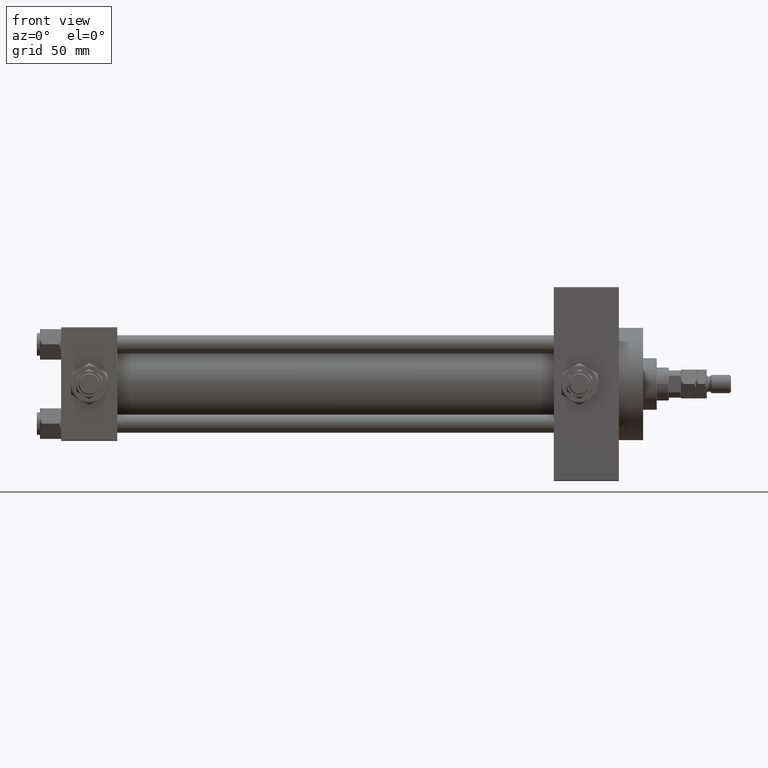
[diagram: clean part render]
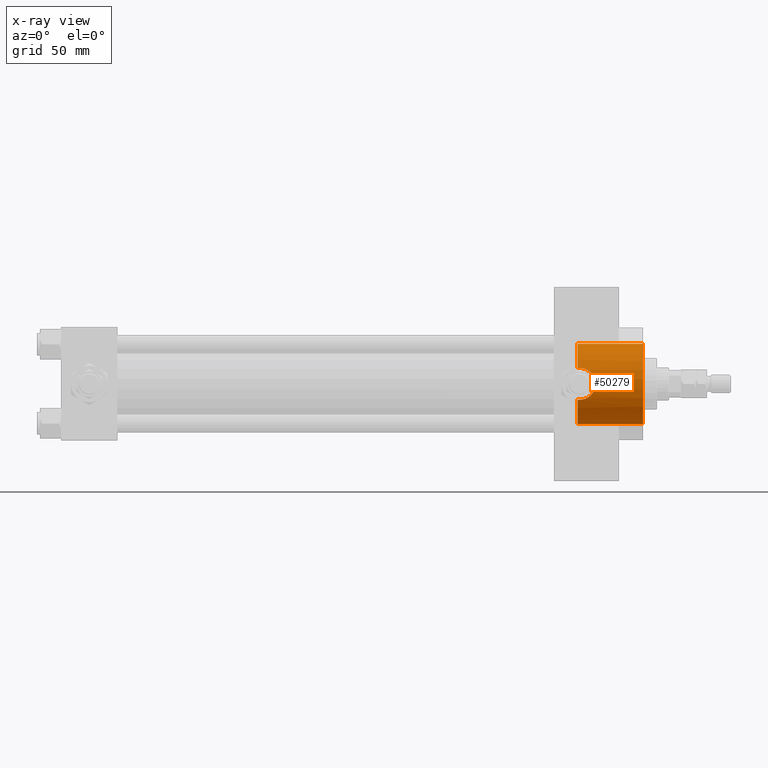
[diagram: x-ray — body ghosted, one internal face saturated and labeled with its STEP entity id]
A machine part, front view, then the same camera in x-ray: the body is ghosted and one INTERNAL B-rep face — a face not visible from any outside direction — is saturated and labeled: STEP entity #50279.
In plain terms, the highlighted cylindrical surface (partial cylindrical patch) has radius 26.5 mm, axis along (1, 0, 0).
Its self-contained STEP definition (entity closure, byte-faithful):
#153 = CARTESIAN_POINT ( 'NONE',  ( 341.9999999999999432, -24.33967132070604578, 10.47999999999998799 ) ) ;
#399 = CARTESIAN_POINT ( 'NONE',  ( 351.9389570606564348, -26.28956209411557765, -3.395175965175869059 ) ) ;
#728 = EDGE_CURVE ( 'NONE', #35579, #28452, #46497, .T. ) ;
#1194 = CIRCLE ( 'NONE', #36497, 26.50000000000000355 ) ;
#2203 = EDGE_CURVE ( 'NONE', #11181, #50390, #3375, .T. ) ;
#3089 = DIRECTION ( 'NONE',  ( 0.000000000000000000, 0.000000000000000000, -1.000000000000000000 ) ) ;
#3375 = B_SPLINE_CURVE_WITH_KNOTS ( 'NONE', 3,
 ( #15062, #35636, #31520, #30750, #50550, #11466, #47204, #24044, #11971, #27908, #15317, #4499, #34619, #46704, #42600, #12232, #35128, #399, #46958, #50813, #27651, #16071, #7358, #27152, #42854, #46439, #7608, #23041, #7856, #31771, #43608, #8357, #39738, #38736, #15581, #43356, #3508, #50299, #11720, #19182, #8114, #34873, #43102, #39246, #4015, #19694, #35389, #153 ),
 .UNSPECIFIED., .F., .F.,
 ( 4, 2, 2, 2, 2, 2, 2, 2, 2, 2, 2, 2, 2, 2, 2, 2, 2, 2, 2, 2, 2, 2, 2, 4 ),
 ( 0.001255586767787742180, 0.003325356817179899935, 0.005395126866572057256, 0.006430011891268136784, 0.007464896915964218047, 0.009534666965356375368, 0.01056955199005239592, 0.01160443701474841993, 0.01367420706414046103, 0.01574397711353250559, 0.01677886213822850706, 0.01781374716292451199, 0.01988351721231651839, 0.02091840223701253720, 0.02195328726170855949, 0.02298817228640457830, 0.02402305731110059711, 0.02609282736049263821, 0.02712771238518860498, 0.02816259740988456828, 0.03023236745927649488, 0.03126725248397245471, 0.03230213750866841455, 0.03437190755806017461 ),
 .UNSPECIFIED. ) ;
#3508 = CARTESIAN_POINT ( 'NONE',  ( 348.9147507852791250, -25.30155050139243400, 7.882476147205608186 ) ) ;
#3826 = ORIENTED_EDGE ( 'NONE', *, *, #2203, .T. ) ;
#4015 = CARTESIAN_POINT ( 'NONE',  ( 344.3947302122626866, -24.45488967133338676, 10.20851256290626097 ) ) ;
#4499 = CARTESIAN_POINT ( 'NONE',  ( 349.6501220615578518, -25.51256335955730137, -7.170912732211419893 ) ) ;
#5785 = EDGE_CURVE ( 'NONE', #41566, #11181, #28119, .T. ) ;
#6280 = CARTESIAN_POINT ( 'NONE',  ( 341.1580741051582208, -24.35064928096445058, 10.45461191700780645 ) ) ;
#6559 = EDGE_LOOP ( 'NONE', ( #44575, #41117, #40584, #9206, #33628, #35241, #3826, #20686 ) ) ;
#7358 = CARTESIAN_POINT ( 'NONE',  ( 352.4800680225664564, -26.50002690099941560, -0.3451042088078207781 ) ) ;
#7608 = CARTESIAN_POINT ( 'NONE',  ( 352.1219222710723784, -26.36027543327035971, 2.738055544399103702 ) ) ;
#7856 = CARTESIAN_POINT ( 'NONE',  ( 351.8022638174866188, -26.23907308479209632, 3.723318718764354163 ) ) ;
#8114 = CARTESIAN_POINT ( 'NONE',  ( 346.6659000583121042, -24.77500862834707007, 9.408993987884889165 ) ) ;
#8357 = CARTESIAN_POINT ( 'NONE',  ( 351.0679913760331488, -25.97354752128884314, 5.264851845784575879 ) ) ;
#9206 = ORIENTED_EDGE ( 'NONE', *, *, #728, .F. ) ;
#9447 = DIRECTION ( 'NONE',  ( 0.000000000000000000, 0.000000000000000000, -1.000000000000000000 ) ) ;
#10883 = CARTESIAN_POINT ( 'NONE',  ( 383.9999999999999432, 0.000000000000000000, 0.000000000000000000 ) ) ;
#11181 = VERTEX_POINT ( 'NONE', #25911 ) ;
#11466 = CARTESIAN_POINT ( 'NONE',  ( 346.3489237122697659, -24.72318467201153425, -9.541179571695417749 ) ) ;
#11720 = CARTESIAN_POINT ( 'NONE',  ( 348.1110651716821280, -25.09360970262139645, 8.520611273842973787 ) ) ;
#11971 = CARTESIAN_POINT ( 'NONE',  ( 347.5577538920437632, -24.96463143003450824, -8.891425016462832787 ) ) ;
#12232 = CARTESIAN_POINT ( 'NONE',  ( 351.0816778311290136, -25.97633853132262516, -5.273786452924778878 ) ) ;
#14697 = CARTESIAN_POINT ( 'NONE',  ( 340.7399999999999523, 0.000000000000000000, -26.50000000000000355 ) ) ;
#14748 = DIRECTION ( 'NONE',  ( 1.000000000000000000, 0.000000000000000000, 0.000000000000000000 ) ) ;
#14800 = DIRECTION ( 'NONE',  ( 1.000000000000000000, 0.000000000000000000, 0.000000000000000000 ) ) ;
#14999 = DIRECTION ( 'NONE',  ( 0.000000000000000000, 0.000000000000000000, -1.000000000000000000 ) ) ;
#15062 = CARTESIAN_POINT ( 'NONE',  ( 341.9999999999999432, -24.33967132070604933, -10.47999999999998444 ) ) ;
#15161 = DIRECTION ( 'NONE',  ( 1.000000000000000000, 0.000000000000000000, 0.000000000000000000 ) ) ;
#15317 = CARTESIAN_POINT ( 'NONE',  ( 348.9276451403628130, -25.30216499957184695, -7.893159106980490947 ) ) ;
#15389 = EDGE_CURVE ( 'NONE', #50390, #40488, #20656, .T. ) ;
#15581 = CARTESIAN_POINT ( 'NONE',  ( 349.8850942087586304, -25.58093385762821725, 6.936447548980003042 ) ) ;
#16071 = CARTESIAN_POINT ( 'NONE',  ( 352.4626037639856690, -26.49310609510639836, -0.6963515910539230802 ) ) ;
#17259 = DIRECTION ( 'NONE',  ( 1.000000000000000000, -0.000000000000000000, -0.000000000000000000 ) ) ;
#17515 = CARTESIAN_POINT ( 'NONE',  ( 340.7399999999999523, 3.245314017740486554E-15, 26.50000000000000355 ) ) ;
#17679 = FACE_OUTER_BOUND ( 'NONE', #6559, .T. ) ;
#18088 = CARTESIAN_POINT ( 'NONE',  ( 341.9999999999999432, -24.33967132070604933, -10.47999999999998444 ) ) ;
#18659 = AXIS2_PLACEMENT_3D ( 'NONE', #26148, #33636, #9447 ) ;
#19182 = CARTESIAN_POINT ( 'NONE',  ( 347.2636119660474492, -24.89625137302611790, 9.087734872939149611 ) ) ;
#19694 = CARTESIAN_POINT ( 'NONE',  ( 343.3839948142214098, -24.36973996242158336, 10.41091756284552261 ) ) ;
#20027 = EDGE_CURVE ( 'NONE', #33153, #28452, #34287, .T. ) ;
#20656 = B_SPLINE_CURVE_WITH_KNOTS ( 'NONE', 3,
 ( #50260, #41788, #6280, #50514 ),
 .UNSPECIFIED., .F., .F.,
 ( 4, 4 ),
 ( 0.03437190755806017461, 0.03561776921873229668 ),
 .UNSPECIFIED. ) ;
#20686 = ORIENTED_EDGE ( 'NONE', *, *, #15389, .T. ) ;
#21003 = VECTOR ( 'NONE', #43155, 1000.000000000000000 ) ;
#22469 = VERTEX_POINT ( 'NONE', #49616 ) ;
#23041 = CARTESIAN_POINT ( 'NONE',  ( 351.9191483855534557, -26.28308039691836484, 3.400110870430098409 ) ) ;
#24044 = CARTESIAN_POINT ( 'NONE',  ( 347.2635990777562256, -24.90054338428141634, -9.068796382691610702 ) ) ;
#25594 = CARTESIAN_POINT ( 'NONE',  ( 340.7399999999999523, 0.000000000000000000, 0.000000000000000000 ) ) ;
#25911 = CARTESIAN_POINT ( 'NONE',  ( 341.9999999999999432, -24.33967132070604933, -10.47999999999998444 ) ) ;
#26148 = CARTESIAN_POINT ( 'NONE',  ( 340.7399999999999523, 0.000000000000000000, 0.000000000000000000 ) ) ;
#26304 = CARTESIAN_POINT ( 'NONE',  ( 341.5811236364005481, -24.33967132070604933, -10.47999999999998444 ) ) ;
#26988 = CARTESIAN_POINT ( 'NONE',  ( 383.9999999999999432, 0.000000000000000000, -26.50000000000000355 ) ) ;
#27152 = CARTESIAN_POINT ( 'NONE',  ( 352.4798633477533940, -26.49994595790487750, 0.6963870350870609016 ) ) ;
#27651 = CARTESIAN_POINT ( 'NONE',  ( 352.3935590552673034, -26.46591511510091621, -1.387412420731360285 ) ) ;
#27908 = CARTESIAN_POINT ( 'NONE',  ( 348.4049404352973056, -25.16229795609820030, -8.322848467437522046 ) ) ;
#28119 = B_SPLINE_CURVE_WITH_KNOTS ( 'NONE', 3,
 ( #38405, #34803, #26304, #18088 ),
 .UNSPECIFIED., .F., .F.,
 ( 4, 4 ),
 ( 0.000000000000000000, 0.001255586767787742180 ),
 .UNSPECIFIED. ) ;
#28452 = VERTEX_POINT ( 'NONE', #26988 ) ;
#30583 = CARTESIAN_POINT ( 'NONE',  ( 340.7399999999999523, -24.37226292324946542, -10.40398000767012121 ) ) ;
#30750 = CARTESIAN_POINT ( 'NONE',  ( 344.7461877943152899, -24.48462605612511567, -10.13781324604278566 ) ) ;
#31520 = CARTESIAN_POINT ( 'NONE',  ( 343.3786097457405049, -24.36915941385104034, -10.41231194222669032 ) ) ;
#31771 = CARTESIAN_POINT ( 'NONE',  ( 351.5385175848664403, -26.14168889184969657, 4.354785931857528603 ) ) ;
#33097 = CARTESIAN_POINT ( 'NONE',  ( 340.7399999999999523, -24.37226292324946542, 10.40398000767012476 ) ) ;
#33153 = VERTEX_POINT ( 'NONE', #48424 ) ;
#33628 = ORIENTED_EDGE ( 'NONE', *, *, #44069, .F. ) ;
#33636 = DIRECTION ( 'NONE',  ( 1.000000000000000000, -0.000000000000000000, -0.000000000000000000 ) ) ;
#34133 = AXIS2_PLACEMENT_3D ( 'NONE', #25594, #14800, #41814 ) ;
#34287 = CIRCLE ( 'NONE', #34400, 26.50000000000000355 ) ;
#34400 = AXIS2_PLACEMENT_3D ( 'NONE', #10883, #14748, #14999 ) ;
#34619 = CARTESIAN_POINT ( 'NONE',  ( 349.8811664359166684, -25.58300917221411197, -6.916171625962134861 ) ) ;
#34652 = CARTESIAN_POINT ( 'NONE',  ( 341.9999999999999432, -24.33967132070604578, 10.47999999999998799 ) ) ;
#34803 = CARTESIAN_POINT ( 'NONE',  ( 341.1611364518797131, -24.35049096341793273, -10.45498279016080190 ) ) ;
#34873 = CARTESIAN_POINT ( 'NONE',  ( 345.7173844672075802, -24.61993612039163892, 9.804529592362715817 ) ) ;
#35128 = CARTESIAN_POINT ( 'NONE',  ( 351.4057128516255943, -26.09263577897064224, -4.673612418766433407 ) ) ;
#35241 = ORIENTED_EDGE ( 'NONE', *, *, #5785, .T. ) ;
#35389 = CARTESIAN_POINT ( 'NONE',  ( 342.6982936874238135, -24.33967132070605288, 10.47999999999998799 ) ) ;
#35579 = VERTEX_POINT ( 'NONE', #14697 ) ;
#35636 = CARTESIAN_POINT ( 'NONE',  ( 342.6904960883776994, -24.33967132070605288, -10.47999999999998622 ) ) ;
#36308 = LINE ( 'NONE', #17515, #39919 ) ;
#36497 = AXIS2_PLACEMENT_3D ( 'NONE', #49623, #15161, #3089 ) ;
#37392 = CIRCLE ( 'NONE', #34133, 26.50000000000000355 ) ;
#38405 = CARTESIAN_POINT ( 'NONE',  ( 340.7399999999999523, -24.37226292324946542, -10.40398000767012121 ) ) ;
#38736 = CARTESIAN_POINT ( 'NONE',  ( 350.3165002292778354, -25.71874665637611912, 6.413821170274212058 ) ) ;
#39246 = CARTESIAN_POINT ( 'NONE',  ( 344.7286532048193521, -24.48994387988091148, 10.12445329003759831 ) ) ;
#39524 = EDGE_CURVE ( 'NONE', #22469, #40488, #37392, .T. ) ;
#39738 = CARTESIAN_POINT ( 'NONE',  ( 350.8904987776701887, -25.91192981801192019, 5.559420023815752288 ) ) ;
#39919 = VECTOR ( 'NONE', #17259, 1000.000000000000000 ) ;
#40488 = VERTEX_POINT ( 'NONE', #33097 ) ;
#40584 = ORIENTED_EDGE ( 'NONE', *, *, #20027, .T. ) ;
#41117 = ORIENTED_EDGE ( 'NONE', *, *, #47841, .T. ) ;
#41566 = VERTEX_POINT ( 'NONE', #30583 ) ;
#41788 = CARTESIAN_POINT ( 'NONE',  ( 341.5796744023296583, -24.33967132070604933, 10.47999999999998799 ) ) ;
#41814 = DIRECTION ( 'NONE',  ( 0.000000000000000000, 0.000000000000000000, -1.000000000000000000 ) ) ;
#42600 = CARTESIAN_POINT ( 'NONE',  ( 350.5155153844949609, -25.78569419426080600, -6.118106053452849302 ) ) ;
#42854 = CARTESIAN_POINT ( 'NONE',  ( 352.4114040688938303, -26.47265107862981282, 1.382412405478201434 ) ) ;
#43102 = CARTESIAN_POINT ( 'NONE',  ( 345.3904700717596370, -24.57248644795726378, 9.922439993611758879 ) ) ;
#43155 = DIRECTION ( 'NONE',  ( 1.000000000000000000, -0.000000000000000000, -0.000000000000000000 ) ) ;
#43356 = CARTESIAN_POINT ( 'NONE',  ( 349.1663633815065850, -25.37171319999175978, 7.654298772871981349 ) ) ;
#43608 = CARTESIAN_POINT ( 'NONE',  ( 351.3916535229814144, -26.08830885934473898, 4.663043711798779967 ) ) ;
#44069 = EDGE_CURVE ( 'NONE', #41566, #35579, #1194, .T. ) ;
#44575 = ORIENTED_EDGE ( 'NONE', *, *, #39524, .F. ) ;
#46439 = CARTESIAN_POINT ( 'NONE',  ( 352.2075249541714470, -26.39335609204157862, 2.399236127628251225 ) ) ;
#46497 = LINE ( 'NONE', #50358, #21003 ) ;
#46704 = CARTESIAN_POINT ( 'NONE',  ( 350.3132647636414276, -25.71940794313460188, -6.390292897823909080 ) ) ;
#46958 = CARTESIAN_POINT ( 'NONE',  ( 352.1391112229688360, -26.36675217432885532, -2.738755341944234090 ) ) ;
#47204 = CARTESIAN_POINT ( 'NONE',  ( 346.6580558779860439, -24.77960996754317691, -9.394203453174506890 ) ) ;
#47841 = EDGE_CURVE ( 'NONE', #22469, #33153, #36308, .T. ) ;
#48424 = CARTESIAN_POINT ( 'NONE',  ( 383.9999999999999432, 3.245314017740486554E-15, 26.50000000000000355 ) ) ;
#49058 = CYLINDRICAL_SURFACE ( 'NONE', #18659, 26.50000000000000355 ) ;
#49616 = CARTESIAN_POINT ( 'NONE',  ( 340.7399999999999523, 3.245314017740486554E-15, 26.50000000000000355 ) ) ;
#49623 = CARTESIAN_POINT ( 'NONE',  ( 340.7399999999999523, 0.000000000000000000, 0.000000000000000000 ) ) ;
#50260 = CARTESIAN_POINT ( 'NONE',  ( 341.9999999999999432, -24.33967132070604578, 10.47999999999998799 ) ) ;
#50279 = ADVANCED_FACE ( 'NONE', ( #17679 ), #49058, .F. ) ;
#50299 = CARTESIAN_POINT ( 'NONE',  ( 348.3864792908362915, -25.16230905708522059, 8.316254619809559046 ) ) ;
#50358 = CARTESIAN_POINT ( 'NONE',  ( 340.7399999999999523, 0.000000000000000000, -26.50000000000000355 ) ) ;
#50390 = VERTEX_POINT ( 'NONE', #34652 ) ;
#50514 = CARTESIAN_POINT ( 'NONE',  ( 340.7399999999999523, -24.37226292324946542, 10.40398000767012476 ) ) ;
#50550 = CARTESIAN_POINT ( 'NONE',  ( 345.4024368383432488, -24.56844862672226881, -9.935854460437958835 ) ) ;
#50813 = CARTESIAN_POINT ( 'NONE',  ( 352.3421836049515719, -26.44572692659851043, -1.728475508984246733 ) ) ;